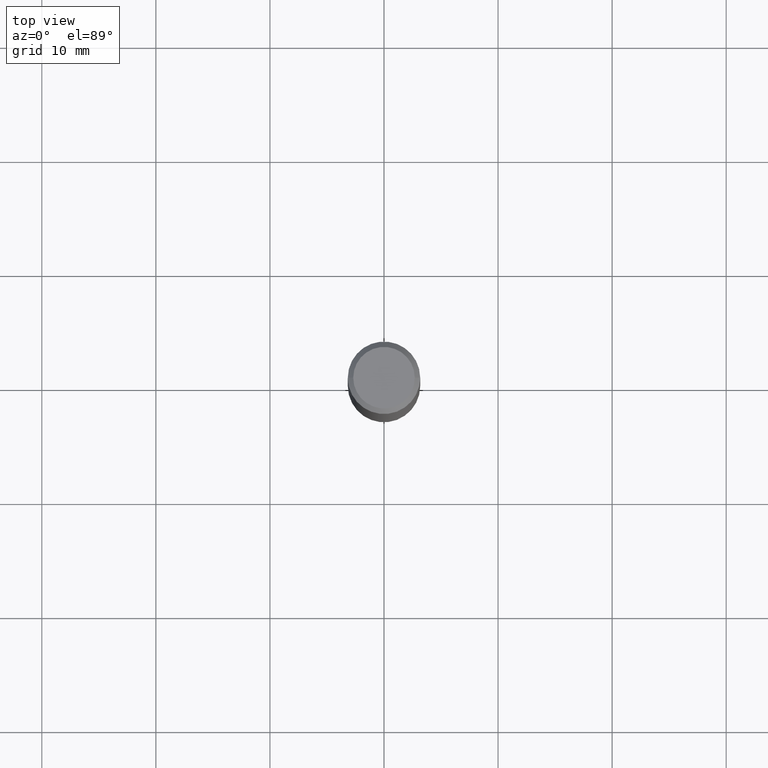
[diagram: clean part render]
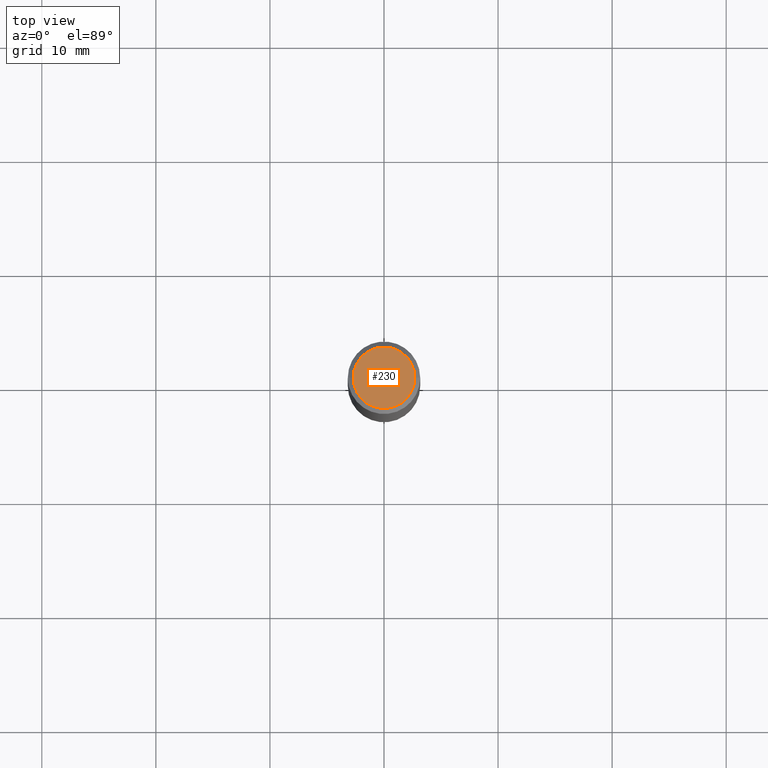
[diagram: same view with one face highlighted and labeled with its STEP entity id]
A machine part, top view. The second image highlights one B-rep face of the part: STEP entity #230.
In plain terms, the highlighted planar face has unit normal (0, -0, -1).
Its self-contained STEP definition (entity closure, byte-faithful):
#19 = PLANE ( 'NONE',  #303 ) ;
#29 = EDGE_CURVE ( 'NONE', #283, #347, #338, .T. ) ;
#36 = EDGE_LOOP ( 'NONE', ( #156, #445 ) ) ;
#98 = DIRECTION ( 'NONE',  ( 1.000000000000000000, -6.982962677686266711E-15, 4.875930095424100059E-29 ) ) ;
#109 = CARTESIAN_POINT ( 'NONE',  ( -1.591006383764329968E-46, 2.271535455632767580E-32, 6.505936120470314915E-18 ) ) ;
#112 = AXIS2_PLACEMENT_3D ( 'NONE', #246, #138, #98 ) ;
#131 = CARTESIAN_POINT ( 'NONE',  ( 0.1062499999999999972, -8.259777185439879685E-16, 6.505936120475796882E-18 ) ) ;
#138 = DIRECTION ( 'NONE',  ( -2.445468806185136597E-29, 3.491481338843145583E-15, 1.000000000000000000 ) ) ;
#156 = ORIENTED_EDGE ( 'NONE', *, *, #29, .T. ) ;
#230 = ADVANCED_FACE ( 'NONE', ( #452 ), #19, .F. ) ;
#246 = CARTESIAN_POINT ( 'NONE',  ( -1.591006383764329968E-46, 2.271535455632767580E-32, 6.505936120470314915E-18 ) ) ;
#258 = DIRECTION ( 'NONE',  ( -2.445468806185136597E-29, 3.491481338843145583E-15, 1.000000000000000000 ) ) ;
#283 = VERTEX_POINT ( 'NONE', #353 ) ;
#284 = CARTESIAN_POINT ( 'NONE',  ( -7.955031918821649840E-47, 1.135767727816383790E-32, 3.252968060235157457E-18 ) ) ;
#287 = DIRECTION ( 'NONE',  ( 2.438088387897960049E-29, -3.491481338843145188E-15, -1.000000000000000000 ) ) ;
#303 = AXIS2_PLACEMENT_3D ( 'NONE', #284, #287, #431 ) ;
#319 = EDGE_CURVE ( 'NONE', #347, #283, #386, .T. ) ;
#338 = CIRCLE ( 'NONE', #112, 0.1062499999999999972 ) ;
#347 = VERTEX_POINT ( 'NONE', #131 ) ;
#353 = CARTESIAN_POINT ( 'NONE',  ( -0.1062499999999999972, 7.746724220558198188E-16, 6.505936120465012444E-18 ) ) ;
#365 = AXIS2_PLACEMENT_3D ( 'NONE', #109, #258, #404 ) ;
#386 = CIRCLE ( 'NONE', #365, 0.1062499999999999972 ) ;
#404 = DIRECTION ( 'NONE',  ( 1.000000000000000000, -6.982962677686266711E-15, 4.875930095424100059E-29 ) ) ;
#431 = DIRECTION ( 'NONE',  ( -1.000000000000000000, 6.982962677686265922E-15, -4.876176775795935793E-29 ) ) ;
#445 = ORIENTED_EDGE ( 'NONE', *, *, #319, .T. ) ;
#452 = FACE_OUTER_BOUND ( 'NONE', #36, .T. ) ;